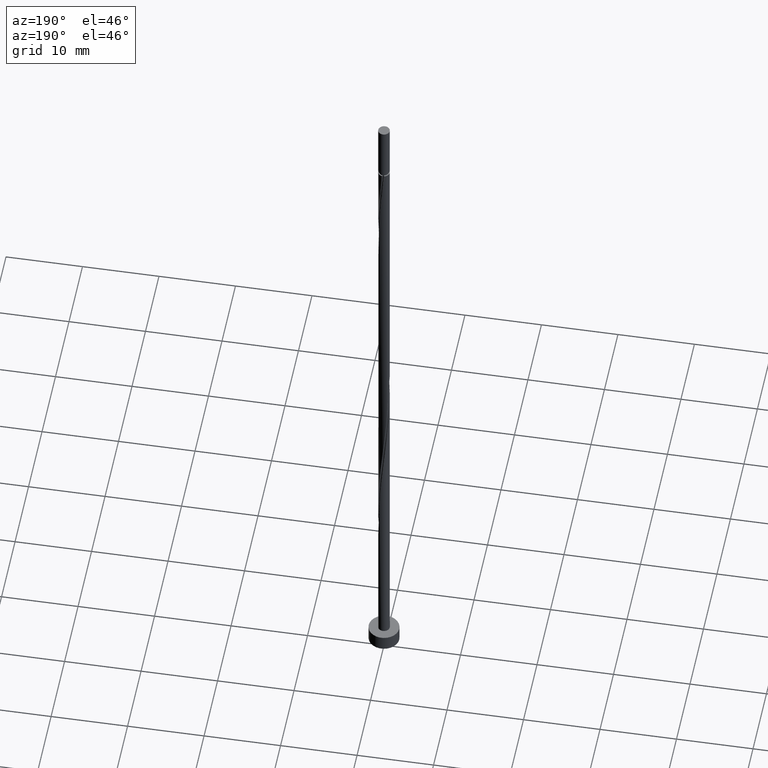
[diagram: clean part render]
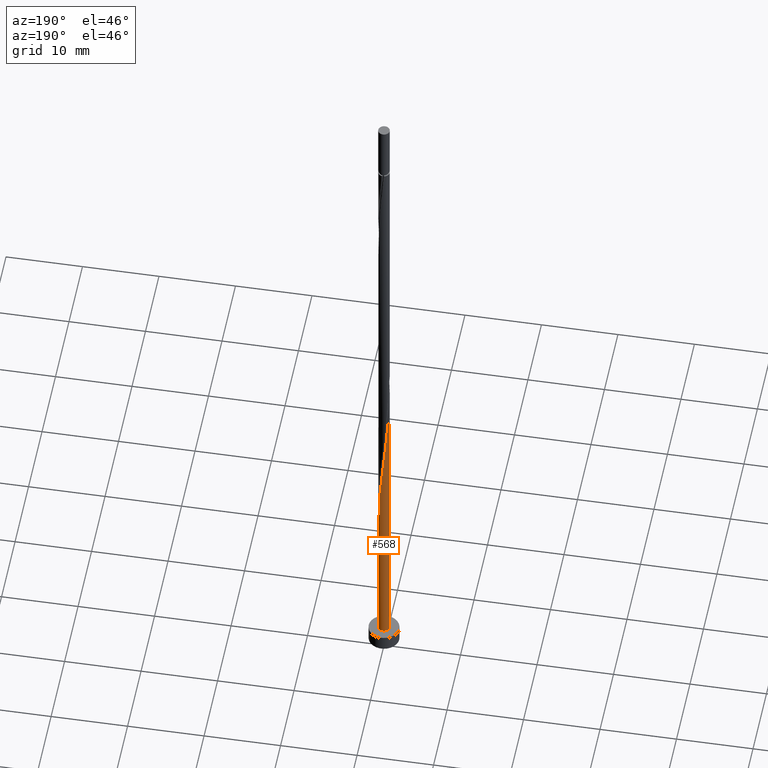
[diagram: same view with one face highlighted and labeled with its STEP entity id]
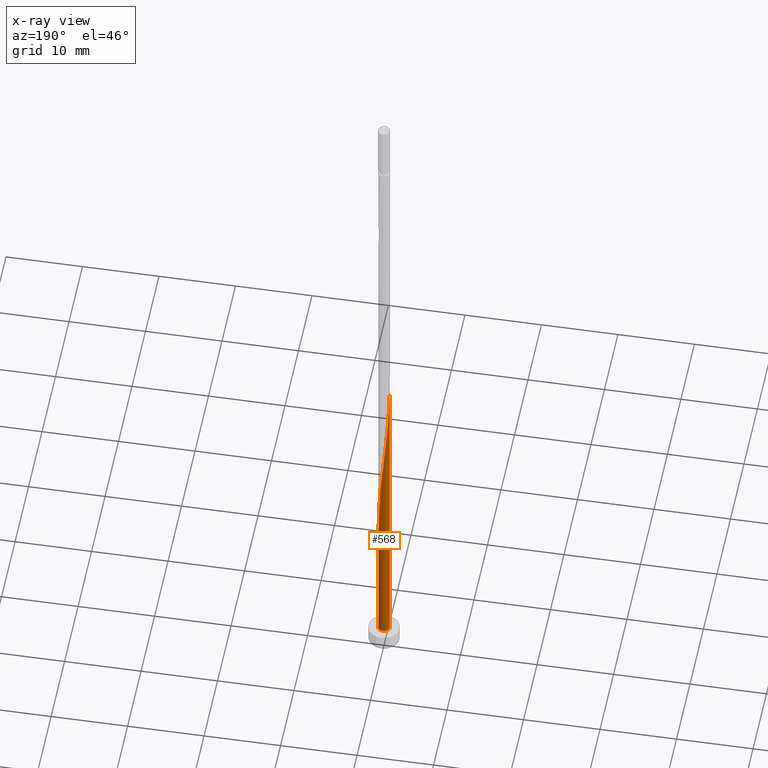
[diagram: x-ray of the same camera — body ghosted, the highlighted face saturated]
A machine part, auxiliary view. The second image highlights one B-rep face of the part: STEP entity #568.
The next image is the same camera in x-ray: the body ghosted, the highlighted face saturated — about 0% of this face is hidden behind the body in this view.
In plain terms, the highlighted cylindrical surface (edge-blend (fillet) strip) has radius 0.75 mm, axis along (-0, -0, -1).
Its self-contained STEP definition (entity closure, byte-faithful):
#56 = VERTEX_POINT ( 'NONE', #1492 ) ;
#69 = CARTESIAN_POINT ( 'NONE',  ( 0.7181837760446291297, 0.2320627263925744699, 21.58043618694317800 ) ) ;
#92 = CARTESIAN_POINT ( 'NONE',  ( 0.7350000000000012079, 0.1492481155659927672, 20.64293618694317800 ) ) ;
#103 = CARTESIAN_POINT ( 'NONE',  ( -0.7500000000000001110, 0.000000000000000000, 2.000000000000000000 ) ) ;
#105 = CARTESIAN_POINT ( 'NONE',  ( 0.2663463148231436373, 0.7061874296067633949, 29.08043618694317445 ) ) ;
#187 = DIRECTION ( 'NONE',  ( -0.000000000000000000, -0.000000000000000000, -1.000000000000000000 ) ) ;
#213 = ORIENTED_EDGE ( 'NONE', *, *, #306, .T. ) ;
#219 = CARTESIAN_POINT ( 'NONE',  ( -0.7269684483463014768, 0.1844366425333436865, 43.14293618694318155 ) ) ;
#242 = AXIS2_PLACEMENT_3D ( 'NONE', #1354, #1682, #2007 ) ;
#273 = CARTESIAN_POINT ( 'NONE',  ( -0.3090590401637163254, 0.6833611853866767838, 35.64293618694318155 ) ) ;
#278 = ORIENTED_EDGE ( 'NONE', *, *, #882, .T. ) ;
#304 = ORIENTED_EDGE ( 'NONE', *, *, #1105, .F. ) ;
#306 = EDGE_CURVE ( 'NONE', #533, #1697, #1190, .T. ) ;
#322 = AXIS2_PLACEMENT_3D ( 'NONE', #2152, #1987, #1454 ) ;
#357 = LINE ( 'NONE', #1182, #1775 ) ;
#387 = VECTOR ( 'NONE', #187, 1000.000000000000000 ) ;
#433 = CARTESIAN_POINT ( 'NONE',  ( -0.6677008176160329489, 0.3415781289176497704, 41.26793618694316734 ) ) ;
#442 = CARTESIAN_POINT ( 'NONE',  ( 0.4168099430121560700, 0.6292142056253021698, 27.20543618694317445 ) ) ;
#454 = CARTESIAN_POINT ( 'NONE',  ( -0.7061874296067636170, 0.2663463148231435262, 42.20543618694316024 ) ) ;
#513 = LINE ( 'NONE', #1703, #387 ) ;
#533 = VERTEX_POINT ( 'NONE', #1947 ) ;
#544 = EDGE_LOOP ( 'NONE', ( #1114, #278, #213, #304 ) ) ;
#568 = ADVANCED_FACE ( 'NONE', ( #696 ), #878, .T. ) ;
#598 = CARTESIAN_POINT ( 'NONE',  ( -0.7500000000000013323, -5.046777171966181625E-16, 45.21841910903714989 ) ) ;
#696 = FACE_OUTER_BOUND ( 'NONE', #544, .T. ) ;
#774 = CARTESIAN_POINT ( 'NONE',  ( -0.2320627263925746364, 0.7181837760446291297, 34.70543618694316734 ) ) ;
#787 = CARTESIAN_POINT ( 'NONE',  ( -0.7497828455206061449, 0.01804673275206636687, 45.01793618694318155 ) ) ;
#878 = CYLINDRICAL_SURFACE ( 'NONE', #242, 0.7500000000000001110 ) ;
#882 = EDGE_CURVE ( 'NONE', #1063, #533, #357, .T. ) ;
#914 = CARTESIAN_POINT ( 'NONE',  ( 0.5974557874702567384, 0.4533724539694676259, 24.39293618694317445 ) ) ;
#916 = EDGE_CURVE ( 'NONE', #1063, #56, #1793, .T. ) ;
#937 = CARTESIAN_POINT ( 'NONE',  ( -0.4533724539694678479, 0.5974557874702565163, 37.51793618694317445 ) ) ;
#948 = CARTESIAN_POINT ( 'NONE',  ( -0.5749518798146898702, 0.4815914616119725267, 39.39293618694318155 ) ) ;
#1063 = VERTEX_POINT ( 'NONE', #1301 ) ;
#1105 = EDGE_CURVE ( 'NONE', #56, #1697, #513, .T. ) ;
#1110 = CARTESIAN_POINT ( 'NONE',  ( -0.1492481155659927117, 0.7350000000000012079, 33.76793618694316734 ) ) ;
#1114 = ORIENTED_EDGE ( 'NONE', *, *, #916, .F. ) ;
#1182 = CARTESIAN_POINT ( 'NONE',  ( 0.7500000000000001110, 9.184850993605150903E-17, 94.00000000000000000 ) ) ;
#1190 = CIRCLE ( 'NONE', #322, 0.7500000000000001110 ) ;
#1268 = CARTESIAN_POINT ( 'NONE',  ( -0.6292142056253023918, 0.4168099430121560700, 40.33043618694315313 ) ) ;
#1301 = CARTESIAN_POINT ( 'NONE',  ( 0.7500000000000009992, -5.335964033945758494E-16, 18.96841910903711437 ) ) ;
#1354 = CARTESIAN_POINT ( 'NONE',  ( 0.000000000000000000, 0.000000000000000000, 94.00000000000000000 ) ) ;
#1393 = CARTESIAN_POINT ( 'NONE',  ( -0.06643350473941099510, 0.7518162239553730641, 32.83043618694316734 ) ) ;
#1427 = CARTESIAN_POINT ( 'NONE',  ( 0.1844366425333438531, 0.7269684483463013658, 30.01793618694317445 ) ) ;
#1454 = DIRECTION ( 'NONE',  ( 1.000000000000000000, 0.000000000000000000, 0.000000000000000000 ) ) ;
#1492 = CARTESIAN_POINT ( 'NONE',  ( -0.7500000000000013323, -5.046777171966181625E-16, 45.21841910903714989 ) ) ;
#1575 = CARTESIAN_POINT ( 'NONE',  ( -0.3860553539348580143, 0.6485385947287242159, 36.58043618694316024 ) ) ;
#1599 = CARTESIAN_POINT ( 'NONE',  ( 0.5463729802117890388, 0.5206895540040771264, 25.33043618694317090 ) ) ;
#1682 = DIRECTION ( 'NONE',  ( -0.000000000000000000, -0.000000000000000000, -1.000000000000000000 ) ) ;
#1697 = VERTEX_POINT ( 'NONE', #103 ) ;
#1703 = CARTESIAN_POINT ( 'NONE',  ( -0.7500000000000001110, 0.000000000000000000, 94.00000000000000000 ) ) ;
#1705 = CARTESIAN_POINT ( 'NONE',  ( 0.7500000000000009992, -5.335964033945758494E-16, 18.96841910903711437 ) ) ;
#1726 = CARTESIAN_POINT ( 'NONE',  ( 0.01804673275206652647, 0.7497828455206061449, 31.89293618694317445 ) ) ;
#1739 = CARTESIAN_POINT ( 'NONE',  ( 0.7500000000000012212, 0.07537783614444054647, 19.80669018800072578 ) ) ;
#1750 = CARTESIAN_POINT ( 'NONE',  ( 0.1025269702435439995, 0.7477494670858391146, 30.95543618694316379 ) ) ;
#1763 = CARTESIAN_POINT ( 'NONE',  ( -0.5206895540040773485, 0.5463729802117890388, 38.45543618694316024 ) ) ;
#1775 = VECTOR ( 'NONE', #1833, 1000.000000000000000 ) ;
#1793 =( BOUNDED_CURVE ( )  B_SPLINE_CURVE ( 2, ( #1705, #1739, #92, #69, #2061, #1919, #914, #1599, #1882, #442, #2072, #105, #1427, #1750, #1726, #1393, #1110, #774, #273, #1575, #937, #1763, #948, #1268, #433, #454, #219, #2087, #787, #2098, #598 ),
 .UNSPECIFIED., .F., .T. ) 
 B_SPLINE_CURVE_WITH_KNOTS ( ( 3, 2, 2, 2, 2, 2, 2, 2, 2, 2, 2, 2, 2, 2, 2, 3 ),
 ( 0.4295303401299220836, 0.4375000000000000000, 0.4464285714285713969, 0.4553571428571429047, 0.4642857142857143016, 0.4732142857142856984, 0.4821428571428570953, 0.4910714285714286031, 0.5000000000000000000, 0.5089285714285713969, 0.5178571428571427937, 0.5267857142857143016, 0.5357142857142856984, 0.5446428571428572063, 0.5535714285714286031, 0.5545303401299221946 ),
 .UNSPECIFIED. ) 
 CURVE ( )  GEOMETRIC_REPRESENTATION_ITEM ( )  RATIONAL_B_SPLINE_CURVE ( ( 0.9079949616361767673, 0.9039886423360400380, 0.9090909090909066181, 0.9033747362665818237, 0.9090909090909066181, 0.9033747362665818237, 0.9090909090909066181, 0.9033747362665818237, 0.9090909090909066181, 0.9033747362665818237, 0.9090909090909066181, 0.9033747362665818237, 0.9090909090909066181, 0.9033747362665818237, 0.9090909090909066181, 0.9033747362665818237, 0.9090909090909066181, 0.9033747362665818237, 0.9090909090909066181, 0.9033747362665818237, 0.9090909090909066181, 0.9033747362665818237, 0.9090909090909066181, 0.9033747362665818237, 0.9090909090909066181, 0.9033747362665818237, 0.9090909090909066181, 0.9033747362665818237, 0.9090909090909066181, 0.9084770030214482928, 0.9079949616361765452 ) ) 
 REPRESENTATION_ITEM ( '' )  );
#1833 = DIRECTION ( 'NONE',  ( -0.000000000000000000, -0.000000000000000000, -1.000000000000000000 ) ) ;
#1882 = CARTESIAN_POINT ( 'NONE',  ( 0.4815914616119726377, 0.5749518798146897591, 26.26793618694317445 ) ) ;
#1919 = CARTESIAN_POINT ( 'NONE',  ( 0.6485385947287242159, 0.3860553539348578478, 23.45543618694317800 ) ) ;
#1947 = CARTESIAN_POINT ( 'NONE',  ( 0.7500000000000001110, 9.184850993605150903E-17, 2.000000000000000000 ) ) ;
#1987 = DIRECTION ( 'NONE',  ( 0.000000000000000000, 0.000000000000000000, 1.000000000000000000 ) ) ;
#2007 = DIRECTION ( 'NONE',  ( -1.000000000000000000, 0.000000000000000000, 0.000000000000000000 ) ) ;
#2061 = CARTESIAN_POINT ( 'NONE',  ( 0.6833611853866768948, 0.3090590401637162699, 22.51793618694317090 ) ) ;
#2072 = CARTESIAN_POINT ( 'NONE',  ( 0.3415781289176498814, 0.6677008176160329489, 28.14293618694318155 ) ) ;
#2087 = CARTESIAN_POINT ( 'NONE',  ( -0.7477494670858391146, 0.1025269702435438468, 44.08043618694316734 ) ) ;
#2098 = CARTESIAN_POINT ( 'NONE',  ( -0.7500000000000011102, 0.009024672874792244795, 45.11805642081206003 ) ) ;
#2152 = CARTESIAN_POINT ( 'NONE',  ( 0.000000000000000000, 0.000000000000000000, 2.000000000000000000 ) ) ;